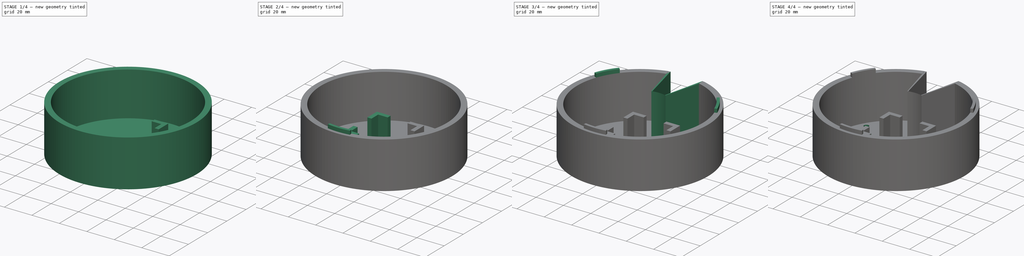
[diagram: build sequence overview — one tinted view per stage of 4, left to right]
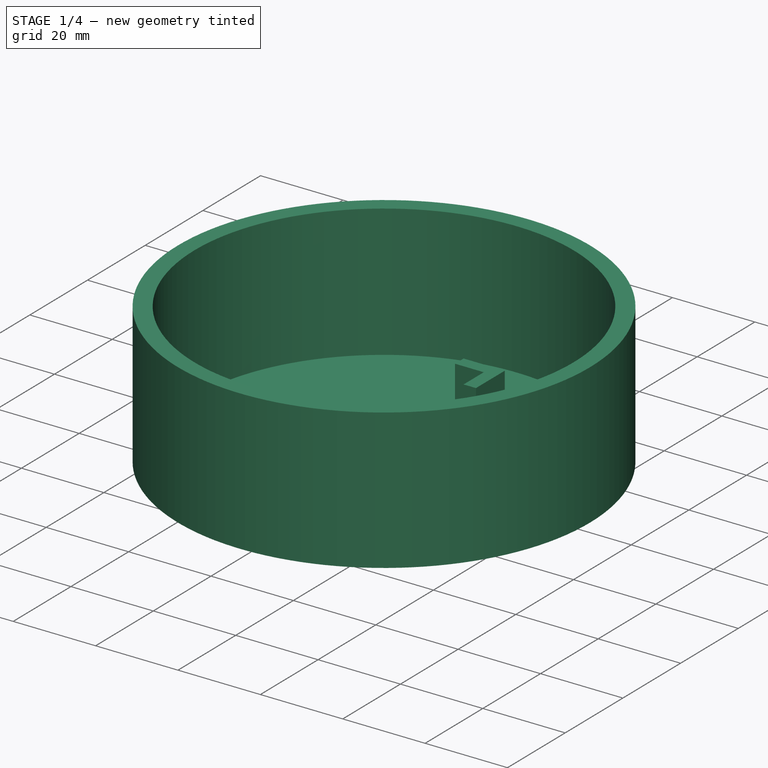
[diagram: stage 1 of 4 — iso view after this stage's code; geometry added in this stage tinted green]
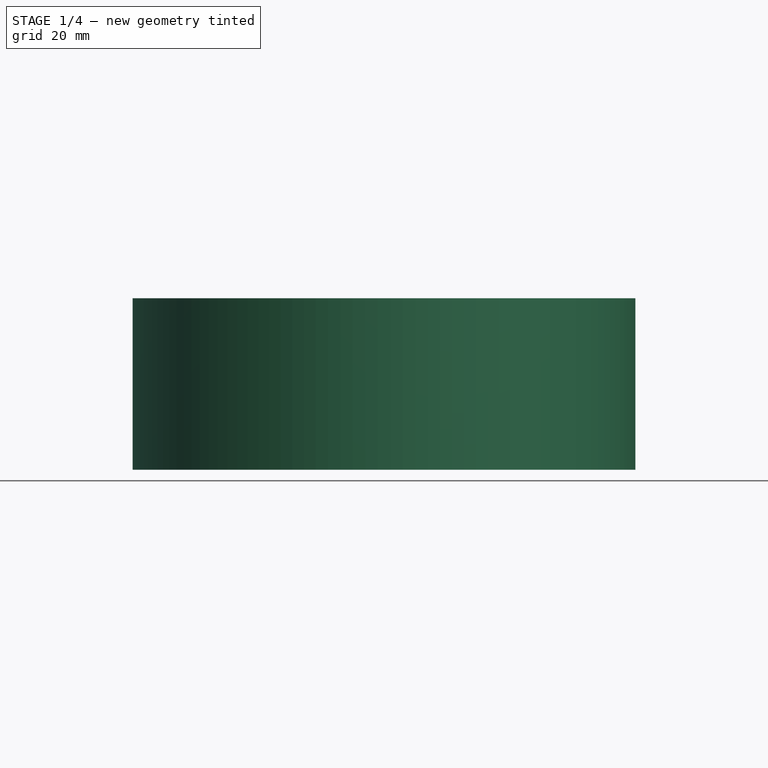
[diagram: stage 1 of 4 — front view after this stage's code; geometry added in this stage tinted green]
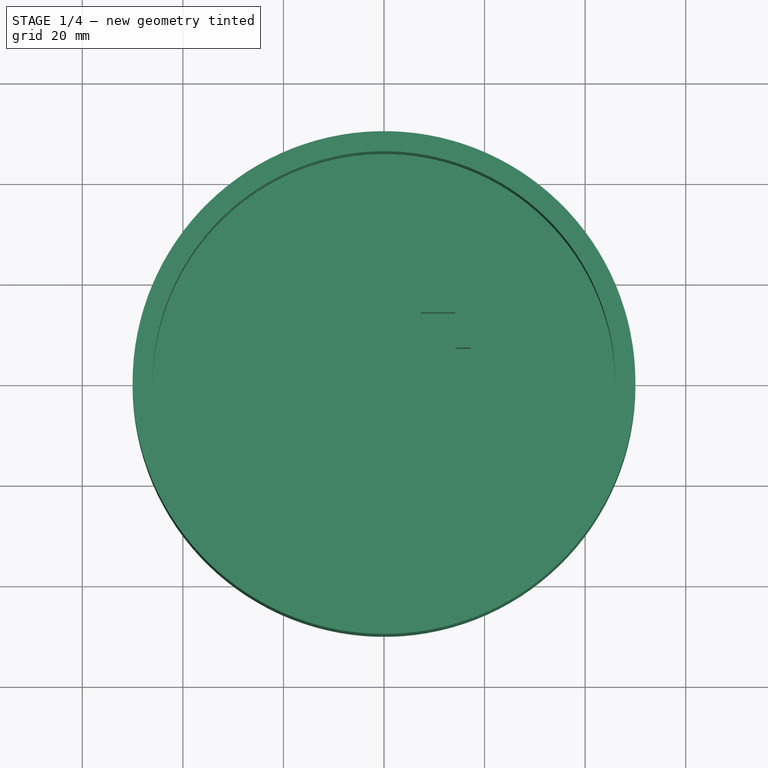
[diagram: stage 1 of 4 — top view after this stage's code; geometry added in this stage tinted green]
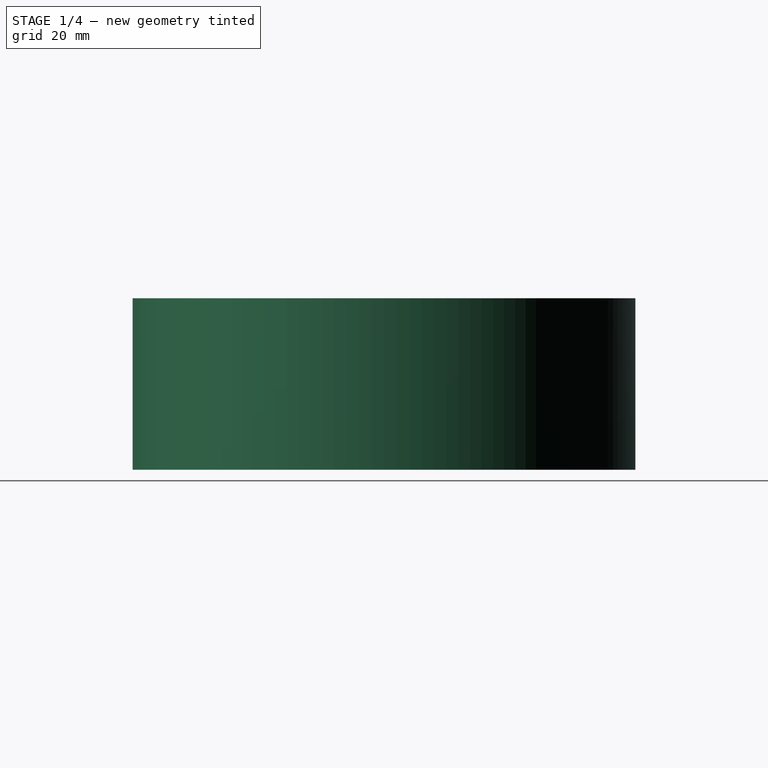
[diagram: stage 1 of 4 — right view after this stage's code; geometry added in this stage tinted green]
FCSTD DOCUMENT  (FreeCAD 0.20R29603 (Git))
Label: Base
License: All rights reserved
LicenseURL: http://en.wikipedia.org/wiki/All_rights_reserved
objects: Sketcher::SketchObject×10, PartDesign::Pocket×5, PartDesign::Pad×4, PartDesign::Plane×3, PartDesign::PolarPattern×2, PartDesign::Groove×1, PartDesign::Fillet×1, PartDesign::Body×1
note: 38 computed .brp shape members not serialized (recipe doc carries the construction recipe); baked Part::Feature solids carry a one-line shape summary decoded from their .brp

FEATURE [Sketcher::SketchObject] Sketch
  FullyConstrained = true
  MapMode = 5
  Support = -> [XY_Plane]
  sketch-geometry (1):
    g0: Circle CenterX=0 CenterY=0 CenterZ=0 NormalX=0 NormalY=0 NormalZ=1 AngleXU=0 Radius=50
  constraints (2):
    c: Coincident(g0,g-1)
    c: Diameter(g0) = 100
FEATURE [PartDesign::Pad] Pad
  Direction = (0,0,1)
  Length = 34.1
  Length2 = 10
  Profile = -> Sketch
  ReferenceAxis = -> Sketch [N_Axis]
  Type = 0
FEATURE [PartDesign::Plane] DatumPlane
  AttachmentOffset = pos=(0,0,34.1) rot=(0,0,1;0rad)
  Length = 120
  MapMode = 2
  Placement = pos=(0,0,34.1) rot=(0,0,1;0rad)
  ResizeMode = 0
  Support = -> [XY_Plane]
  Width = 120
FEATURE [Sketcher::SketchObject] Sketch001
  FullyConstrained = true
  MapMode = 5
  Placement = pos=(0,0,34.1) rot=(0,0,1;0rad)
  Support = -> [DatumPlane]
  sketch-geometry (1):
    g0: Circle CenterX=0 CenterY=0 CenterZ=0 NormalX=0 NormalY=0 NormalZ=1 AngleXU=0 Radius=46
  constraints (2):
    c: Coincident(g0,g-1)
    c: Diameter(g0) = 92
FEATURE [PartDesign::Pocket] Pocket
  BaseFeature = -> Pad
  Direction = (0,0,-1)
  Length = 32.1
  Length2 = 5
  Profile = -> Sketch001
  ReferenceAxis = -> Sketch001 [N_Axis]
  Type = 0
FEATURE [PartDesign::Plane] DatumPlane001
  AttachmentOffset = pos=(0,0,2) rot=(0,0,1;0rad)
  Length = 120
  MapMode = 5
  Placement = pos=(0,0,2) rot=(0,0,1;0rad)
  ResizeMode = 0
  Support = -> [XY_Plane]
  Width = 120
FEATURE [Sketcher::SketchObject] Sketch002
  FullyConstrained = true
  MapMode = 5
  Placement = pos=(0,0,2) rot=(0,0,1;0rad)
  Support = -> [DatumPlane001]
  sketch-geometry (6):
    g0: LineSegment StartX=7.25 StartY=17.25 StartZ=0 EndX=17.25 EndY=17.25 EndZ=0
    g1: LineSegment StartX=17.25 StartY=17.25 StartZ=0 EndX=17.25 EndY=7.25 EndZ=0
    g2: LineSegment StartX=17.25 StartY=7.25 StartZ=0 EndX=14.25 EndY=7.25 EndZ=0
    g3: LineSegment StartX=14.25 StartY=7.25 StartZ=0 EndX=14.25 EndY=14.25 EndZ=0
    g4: LineSegment StartX=14.25 StartY=14.25 StartZ=0 EndX=7.25 EndY=14.25 EndZ=0
    g5: LineSegment StartX=7.25 StartY=14.25 StartZ=0 EndX=7.25 EndY=17.25 EndZ=0
  constraints (18):
    c: Horizontal(g0)
    c: Coincident(g1,g0)
    c: Vertical(g1)
    c: Coincident(g2,g1)
    c: Horizontal(g2)
    c: Coincident(g3,g2)
    c: Vertical(g3)
    c: Coincident(g4,g3)
    c: Horizontal(g4)
    c: Coincident(g5,g4)
    c: Coincident(g5,g0)
    c: DistanceX(g2,g2) = 3
    c: DistanceY(g5,g5) = 3
    c: DistanceY(g3,g3) = 7
    c: DistanceX(g4,g4) = 7
    c: Vertical(g5)
    c: DistanceX(g-1,g3) = 14.25
    c: DistanceY(g-1,g3) = 14.25
FEATURE [PartDesign::Pad] Pad001
  BaseFeature = -> Pocket
  Direction = (0,0,1)
  Length = 16
  Length2 = 10
  Profile = -> Sketch002
  ReferenceAxis = -> Sketch002 [N_Axis]
  Type = 0
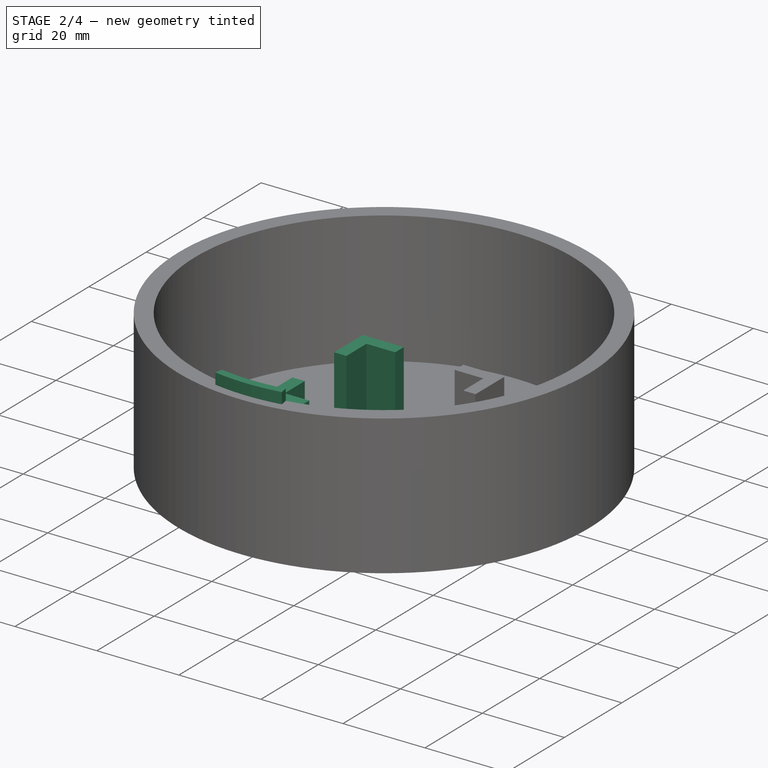
[diagram: stage 2 of 4 — iso view after this stage's code; geometry added in this stage tinted green]
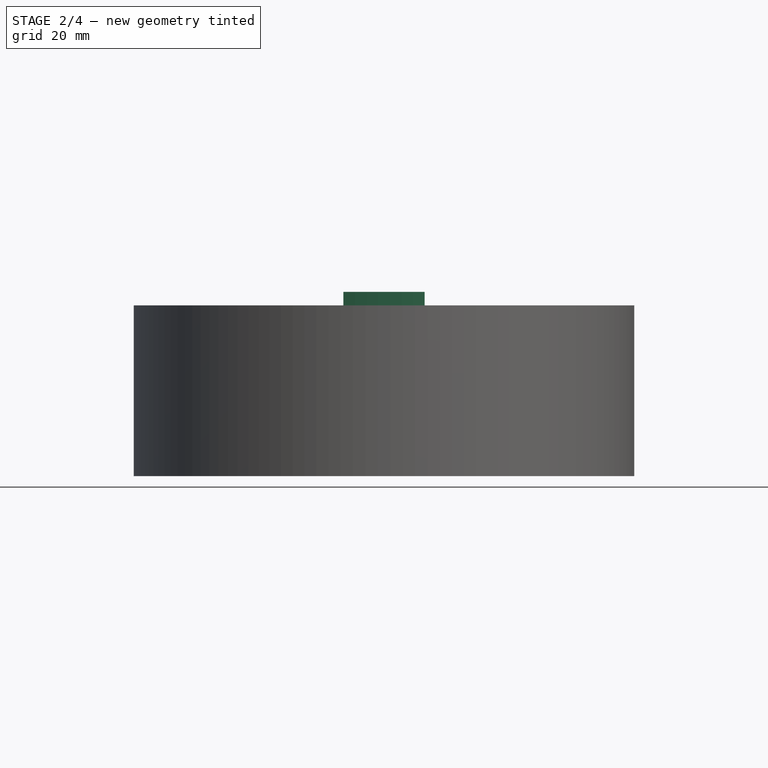
[diagram: stage 2 of 4 — front view after this stage's code; geometry added in this stage tinted green]
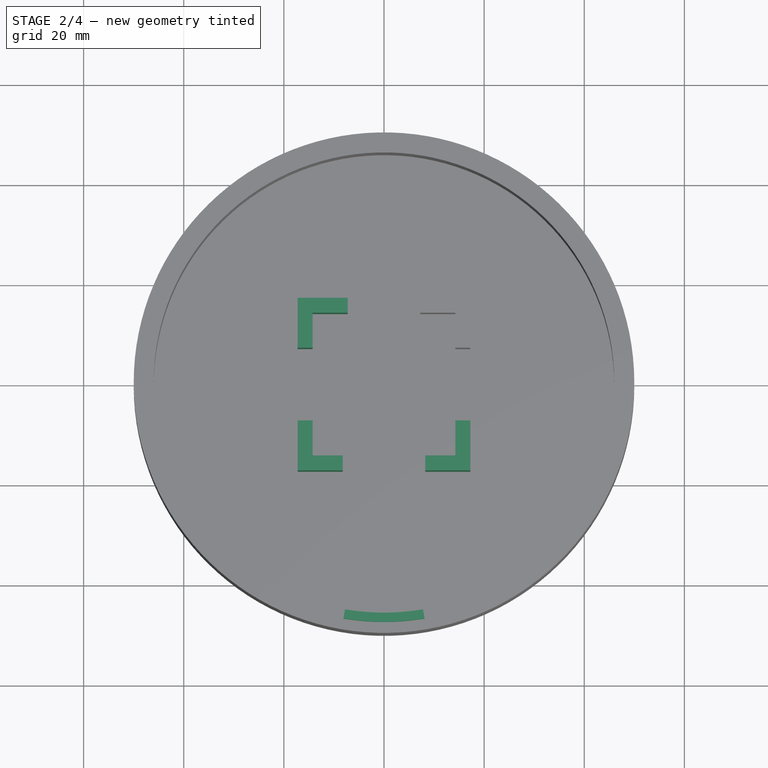
[diagram: stage 2 of 4 — top view after this stage's code; geometry added in this stage tinted green]
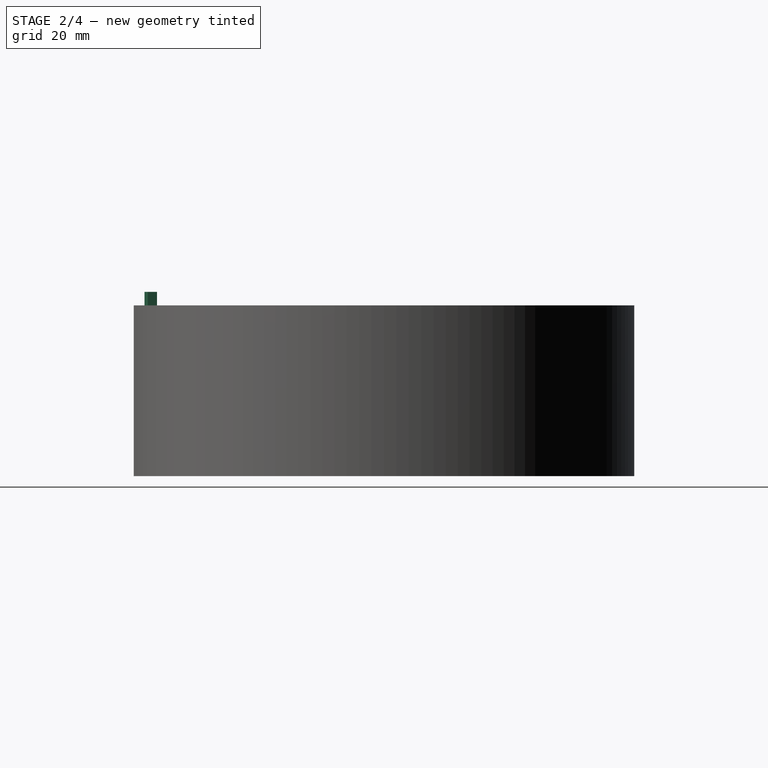
[diagram: stage 2 of 4 — right view after this stage's code; geometry added in this stage tinted green]
FEATURE [PartDesign::PolarPattern] PolarPattern
  Angle = 360
  Axis = -> Sketch002 [N_Axis]
  BaseFeature = -> Pad001
  Occurrences = 4
  Originals = -> [Pad001]
FEATURE [Sketcher::SketchObject] Sketch003
  FullyConstrained = false
  MapMode = 5
  Placement = pos=(0,0,2) rot=(0,0,1;0rad)
  Support = -> [DatumPlane001]
  sketch-geometry (4):
    g0: LineSegment StartX=-8.25 StartY=-12.6472 StartZ=0 EndX=8.25 EndY=-12.6472 EndZ=0
    g1: LineSegment StartX=8.25 StartY=-12.6472 StartZ=0 EndX=8.25 EndY=-19.6069 EndZ=0
    g2: LineSegment StartX=8.25 StartY=-19.6069 StartZ=0 EndX=-8.25 EndY=-19.6069 EndZ=0
    g3: LineSegment StartX=-8.25 StartY=-19.6069 StartZ=0 EndX=-8.25 EndY=-12.6472 EndZ=0
  constraints (10):
    c: Coincident(g0,g1)
    c: Coincident(g1,g2)
    c: Coincident(g2,g3)
    c: Coincident(g3,g0)
    c: Horizontal(g0)
    c: Horizontal(g2)
    c: Vertical(g1)
    c: Vertical(g3)
    c: DistanceX(g0,g0) = 16.5
    c: DistanceX(g-1,g0) = 8.25
FEATURE [PartDesign::Pocket] Pocket001
  BaseFeature = -> PolarPattern
  Direction = (0,0,-1)
  Length = 5
  Length2 = 5
  Profile = -> Sketch003
  ReferenceAxis = -> Sketch003 [N_Axis]
  Reversed = true
  Type = 1
FEATURE [PartDesign::Plane] DatumPlane002
  AttachmentOffset = pos=(0,0,34) rot=(0,0,1;0rad)
  Length = 120
  MapMode = 5
  Placement = pos=(0,0,34) rot=(0,0,1;0rad)
  ResizeMode = 0
  Support = -> [XY_Plane]
  Width = 120
FEATURE [Sketcher::SketchObject] Sketch005
  FullyConstrained = true
  MapMode = 5
  Placement = pos=(0,0,34) rot=(0,0,1;0rad)
  Support = -> [DatumPlane002]
  sketch-geometry (5):
    g0: ArcOfCircle CenterX=0 CenterY=0 CenterZ=0 NormalX=0 NormalY=0 NormalZ=1 AngleXU=0 Radius=46 StartAngle=4.54222 EndAngle=4.88256
    g1: LineSegment StartX=-7.79008 StartY=-45.3356 StartZ=0 EndX=7.79008 EndY=-45.3356 EndZ=0
    g2: ArcOfCircle CenterX=0 CenterY=0 CenterZ=0 NormalX=0 NormalY=0 NormalZ=1 AngleXU=0 Radius=47.85 StartAngle=4.54222 EndAngle=4.88256
    g3: LineSegment StartX=-7.79008 StartY=-45.3356 StartZ=0 EndX=-8.10337 EndY=-47.1589 EndZ=0
    g4: LineSegment StartX=7.79008 StartY=-45.3356 StartZ=0 EndX=8.10337 EndY=-47.1589 EndZ=0
  constraints (14):
    c: Coincident(g0,g-1)
    c: Radius(g0) = 46
    c: Coincident(g1,g0)
    c: Horizontal(g1)
    c: Coincident(g2,g0)
    c: Coincident(g3,g0)
    c: Coincident(g3,g2)
    c: Coincident(g4,g2)
    c: Perpendicular(g2,g3)
    c: Perpendicular(g2,g4)
    c: Distance(g4) = 1.85
    c: Coincident(g0,g1)
    c: Coincident(g0,g4)
    c: Angle(g0) = 0.340339
FEATURE [PartDesign::Pad] Pad002
  BaseFeature = -> Pocket001
  Direction = (0,0,1)
  Length = 2.8
  Length2 = 10
  Profile = -> Sketch005
  ReferenceAxis = -> Sketch005 [N_Axis]
  Type = 0
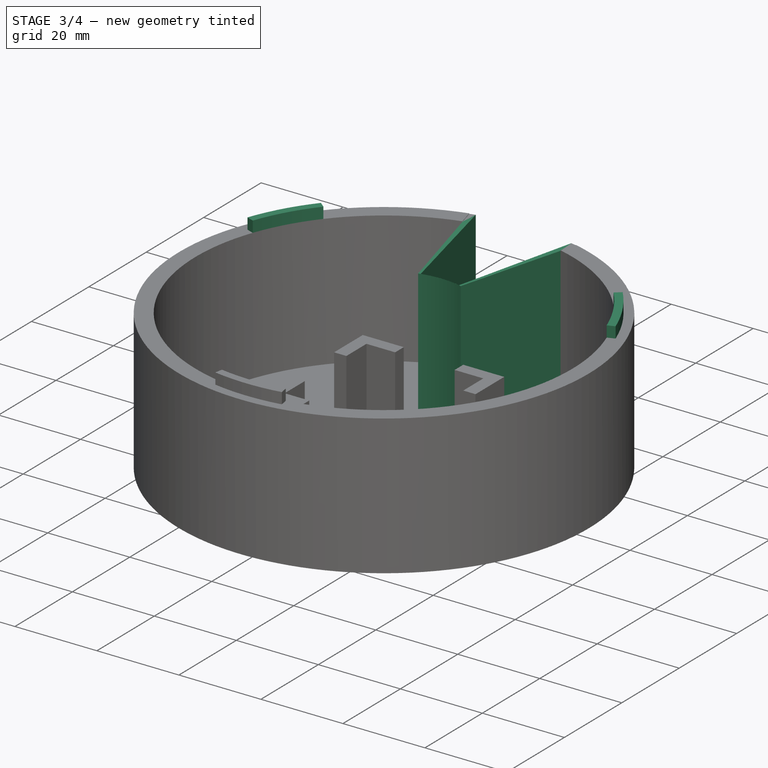
[diagram: stage 3 of 4 — iso view after this stage's code; geometry added in this stage tinted green]
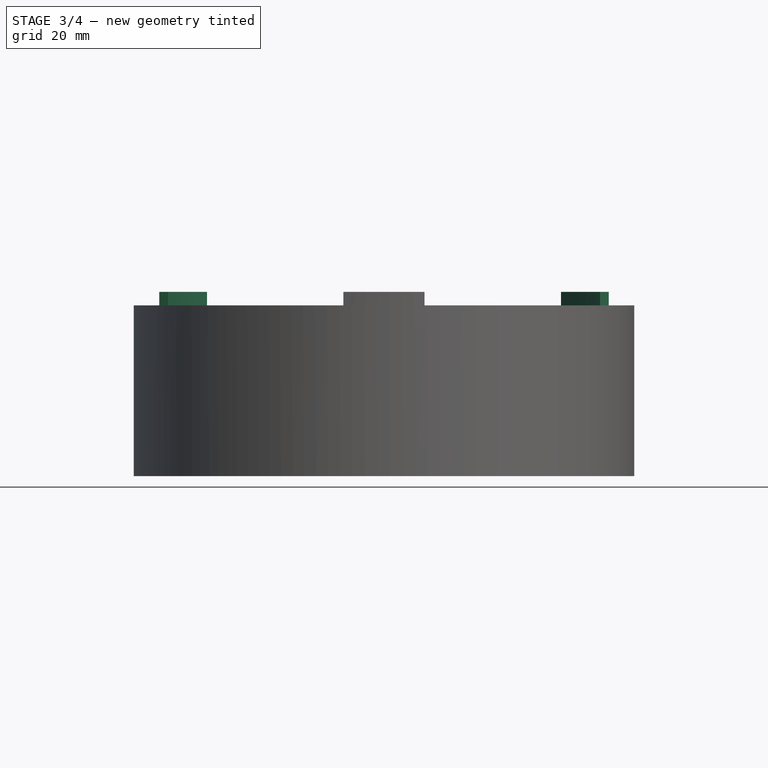
[diagram: stage 3 of 4 — front view after this stage's code; geometry added in this stage tinted green]
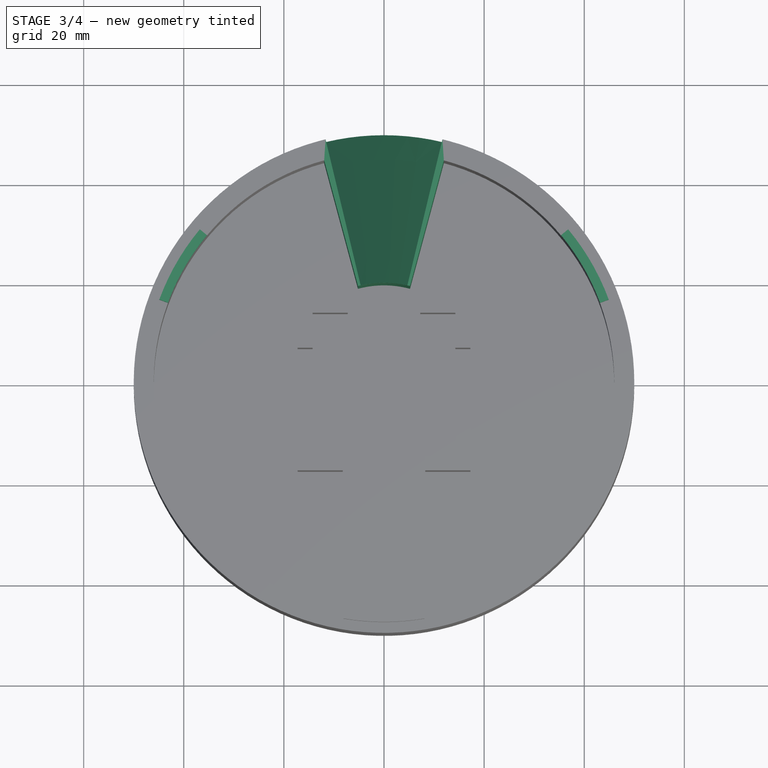
[diagram: stage 3 of 4 — top view after this stage's code; geometry added in this stage tinted green]
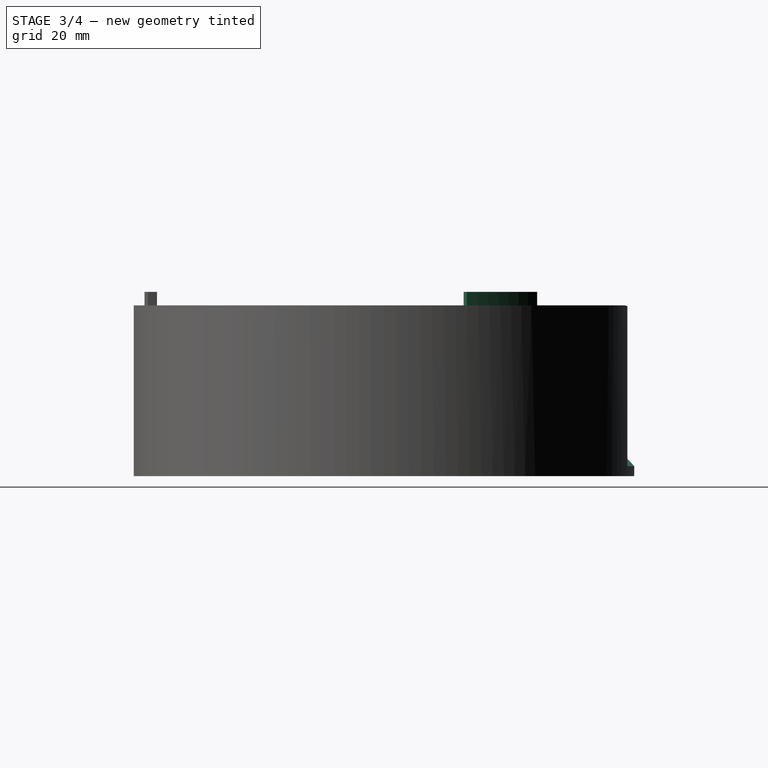
[diagram: stage 3 of 4 — right view after this stage's code; geometry added in this stage tinted green]
FEATURE [PartDesign::PolarPattern] PolarPattern001
  Angle = 360
  Axis = -> Sketch005 [N_Axis]
  BaseFeature = -> Pad002
  Occurrences = 3
  Originals = -> [Pad002]
FEATURE [Sketcher::SketchObject] Sketch006
  FullyConstrained = false
  MapMode = 5
  Placement = pos=(0,0,2) rot=(0,0,1;0rad)
  Support = -> [DatumPlane001]
  sketch-geometry (7):
    g0: ArcOfCircle CenterX=0 CenterY=0 CenterZ=0 NormalX=0 NormalY=0 NormalZ=1 AngleXU=0 Radius=50 StartAngle=1.30777 EndAngle=1.83382
    g1: LineSegment StartX=-13 StartY=48.2804 StartZ=0 EndX=13 EndY=48.2804 EndZ=0
    g2: LineSegment StartX=-13 StartY=48.2804 StartZ=0 EndX=0 EndY=0 EndZ=0
    g3: LineSegment StartX=0 StartY=0 StartZ=0 EndX=13 EndY=48.2804 EndZ=0
    g4: LineSegment StartX=-13 StartY=48.2804 StartZ=0 EndX=-5.83572 EndY=21.6732 EndZ=0
    g5: LineSegment StartX=5.83572 StartY=21.6732 StartZ=0 EndX=13 EndY=48.2804 EndZ=0
    g6: ArcOfCircle CenterX=0 CenterY=0 CenterZ=0 NormalX=0 NormalY=0 NormalZ=1 AngleXU=0 Radius=22.4451 StartAngle=1.30777 EndAngle=1.83382
  constraints (17):
    c: Coincident(g0,g-1)
    c: Coincident(g1,g0)
    c: Coincident(g1,g0)
    c: Horizontal(g1)
    c: Radius(g0) = 50
    c: DistanceX(g1,g1) = 26
    c: Coincident(g2,g0)
    c: Coincident(g2,g0)
    c: Coincident(g3,g0)
    c: Coincident(g3,g0)
    c: Coincident(g4,g0)
    c: PointOnObject(g4,g2)
    c: PointOnObject(g5,g3)
    c: Coincident(g5,g0)
    c: Coincident(g6,g0)
    c: Coincident(g6,g4)
    c: Coincident(g6,g5)
FEATURE [PartDesign::Pocket] Pocket002
  BaseFeature = -> PolarPattern001
  Direction = (0,0,-1)
  Length = 5
  Length2 = 5
  Profile = -> Sketch006
  ReferenceAxis = -> Sketch006 [N_Axis]
  Reversed = true
  Type = 1
FEATURE [Sketcher::SketchObject] Sketch007
  FullyConstrained = true
  MapMode = 5
  Placement = pos=(0,0,2) rot=(0,0,1;0rad)
  Support = -> [DatumPlane001]
  sketch-geometry (10):
    g0: ArcOfCircle CenterX=0 CenterY=0 CenterZ=0 NormalX=0 NormalY=0 NormalZ=1 AngleXU=0 Radius=50 StartAngle=1.30777 EndAngle=1.83382
    g1: LineSegment StartX=-13 StartY=48.2804 StartZ=0 EndX=13 EndY=48.2804 EndZ=0
    g2: GeomPoint X=0 Y=50 Z=0
    g3: LineSegment StartX=-13 StartY=48.2804 StartZ=0 EndX=0 EndY=0 EndZ=0
    g4: LineSegment StartX=13 StartY=48.2804 StartZ=0 EndX=-1.8e-15 EndY=0 EndZ=0
    g5: Circle CenterX=0 CenterY=0 CenterZ=0 NormalX=0 NormalY=0 NormalZ=1 AngleXU=0 Radius=25
    g6: LineSegment StartX=-13 StartY=48.2804 StartZ=0 EndX=-5.2 EndY=19.3122 EndZ=0
    g7: LineSegment StartX=13 StartY=48.2804 StartZ=0 EndX=5.2 EndY=19.3122 EndZ=0
    g8: ArcOfCircle CenterX=0 CenterY=0 CenterZ=0 NormalX=0 NormalY=0 NormalZ=1 AngleXU=0 Radius=20 StartAngle=1.30777 EndAngle=1.83382
    g9: GeomPoint X=0 Y=20 Z=0
  constraints (24):
    c: Coincident(g0,g-1)
    c: Coincident(g1,g0)
    c: Coincident(g1,g0)
    c: Horizontal(g1)
    c: DistanceX(g1,g1) = 26
    c: Radius(g0) = 50
    c: PointOnObject(g2,g0)
    c: PointOnObject(g2,g-2)
    c: Coincident(g3,g0)
    c: Coincident(g3,g0)
    c: Coincident(g4,g0)
    c: Coincident(g4,g0)
    c: Coincident(g5,g0)
    c: Diameter(g5) = 50
    c: Coincident(g6,g0)
    c: PointOnObject(g6,g3)
    c: Coincident(g7,g0)
    c: PointOnObject(g7,g4)
    c: Coincident(g8,g0)
    c: Coincident(g8,g6)
    c: Coincident(g8,g7)
    c: PointOnObject(g9,g8)
    c: PointOnObject(g9,g-2)
    c: DistanceY(g0,g9) = 20
FEATURE [PartDesign::Pad] Pad003
  BaseFeature = -> Pocket002
  Direction = (0,0,1)
  Length = 32
  Length2 = 10
  Profile = -> Sketch007
  ReferenceAxis = -> Sketch007 [N_Axis]
  Type = 0
FEATURE [Sketcher::SketchObject] Sketch008
  FullyConstrained = false
  MapMode = 5
  Placement = pos=(0,0,0) rot=(0.57735,0.57735,0.57735;2.0944rad)
  Support = -> [YZ_Plane]
  sketch-geometry (4):
    g0: LineSegment StartX=20 StartY=34.0087 StartZ=0 EndX=50 EndY=2 EndZ=0
    g1: LineSegment StartX=50 StartY=2 StartZ=0 EndX=50 EndY=52 EndZ=0
    g2: LineSegment StartX=50 StartY=52 StartZ=0 EndX=20 EndY=52 EndZ=0
    g3: LineSegment StartX=20 StartY=52 StartZ=0 EndX=20 EndY=34.0087 EndZ=0
  constraints (11):
    c: Coincident(g1,g0)
    c: Vertical(g1)
    c: Coincident(g2,g1)
    c: Horizontal(g2)
    c: Coincident(g3,g2)
    c: Coincident(g3,g0)
    c: Vertical(g3)
    c: DistanceY(g-1,g0) = 2
    c: DistanceX(g-1,g0) = 50
    c: DistanceX(g-1,g0) = 20
    c: DistanceY(g1,g1) = 50
FEATURE [PartDesign::Groove] Groove
  Angle = 27
  Axis = (-2e-16,3e-16,1)
  Base = (0,0,0)
  BaseFeature = -> Pad003
  Midplane = true
  Profile = -> Sketch008
  ReferenceAxis = -> Sketch008 [V_Axis]
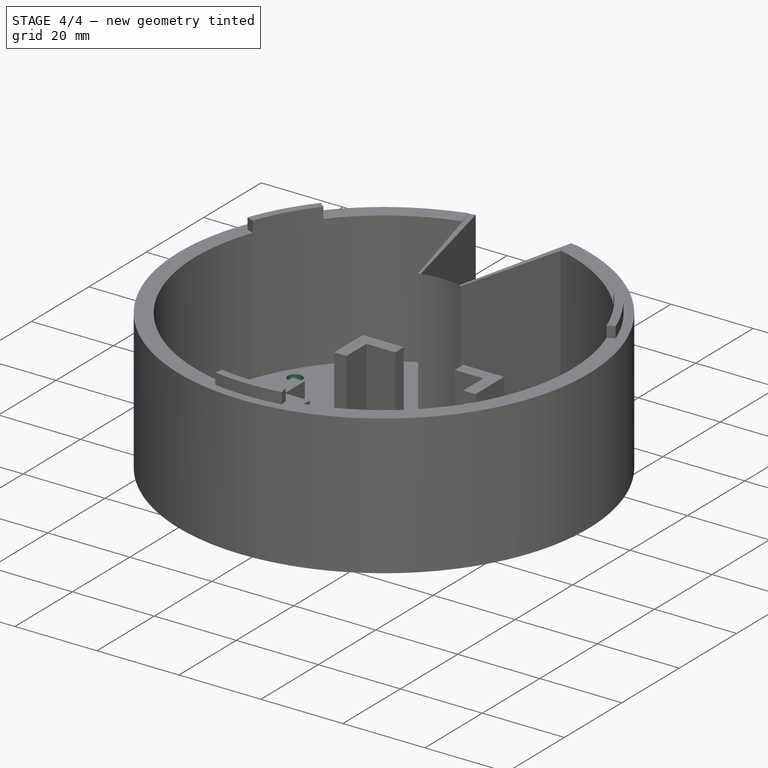
[diagram: stage 4 of 4 — iso view after this stage's code; geometry added in this stage tinted green]
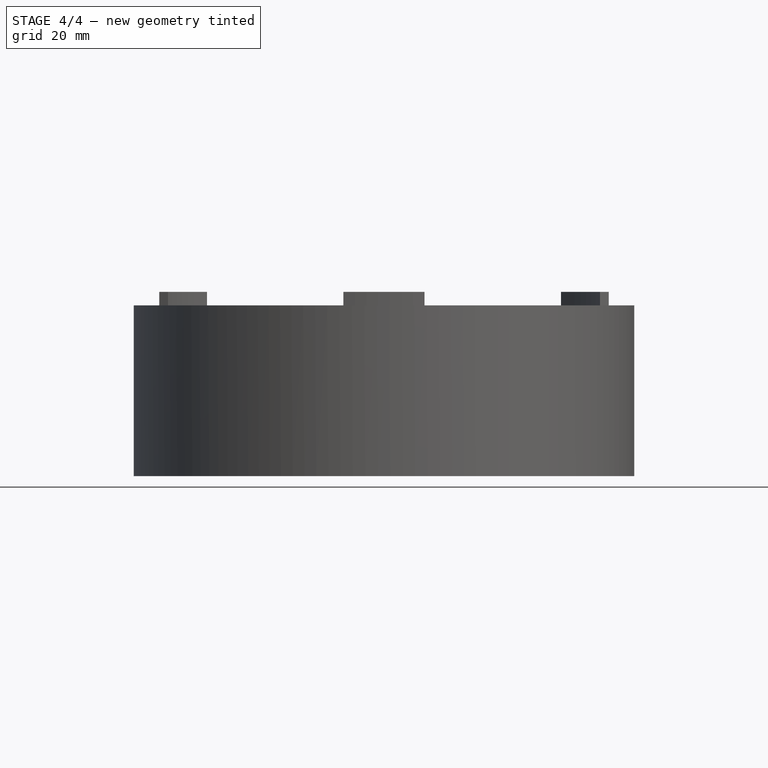
[diagram: stage 4 of 4 — front view after this stage's code; geometry added in this stage tinted green]
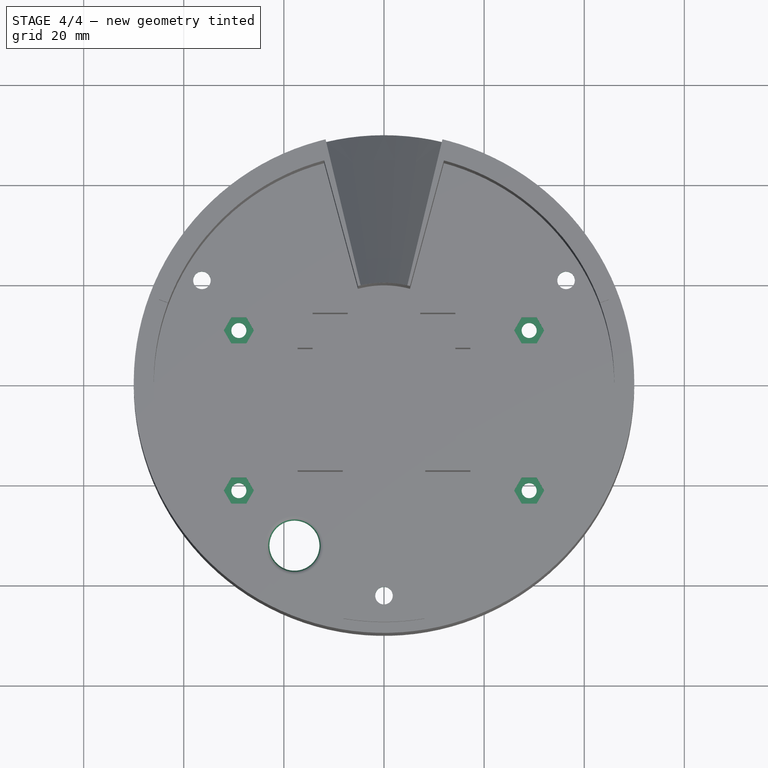
[diagram: stage 4 of 4 — top view after this stage's code; geometry added in this stage tinted green]
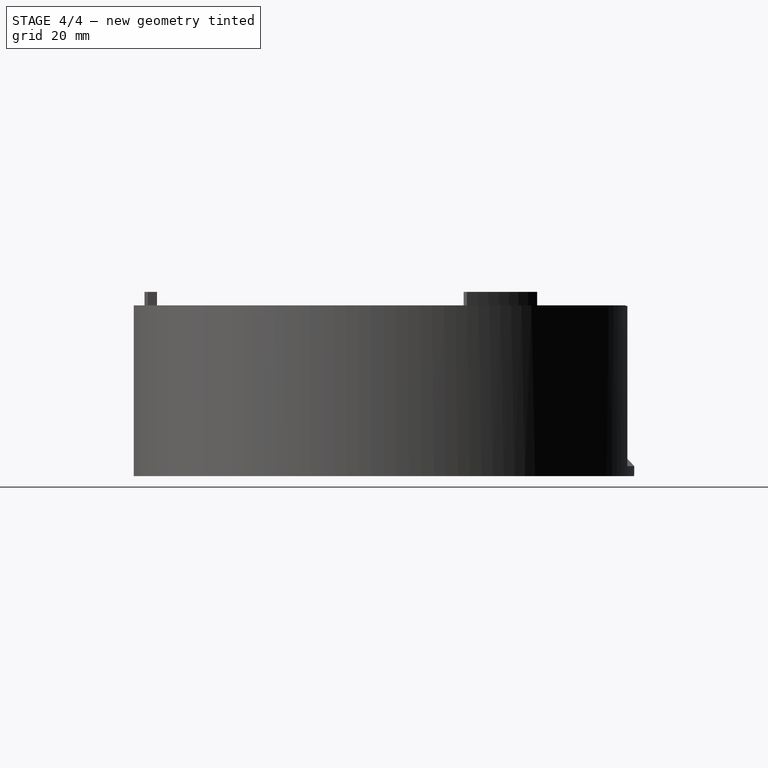
[diagram: stage 4 of 4 — right view after this stage's code; geometry added in this stage tinted green]
FEATURE [Sketcher::SketchObject] Sketch010
  FullyConstrained = true
  MapMode = 5
  Placement = pos=(0,0,2) rot=(0,0,1;0rad)
  Support = -> [DatumPlane001]
  sketch-geometry (33):
    g0: LineSegment StartX=-32.5 StartY=-24.5 StartZ=0 EndX=-32.5 EndY=14.5 EndZ=0
    g1: LineSegment StartX=-32.5 StartY=14.5 StartZ=0 EndX=32.5 EndY=14.5 EndZ=0
    g2: LineSegment StartX=32.5 StartY=14.5 StartZ=0 EndX=32.5 EndY=-24.5 EndZ=0
    g3: LineSegment StartX=32.5 StartY=-24.5 StartZ=0 EndX=-32.5 EndY=-24.5 EndZ=0
    g4: GeomPoint X=0 Y=-5 Z=0
    g5: LineSegment StartX=-25.9978 StartY=11 StartZ=0 EndX=-27.4989 EndY=13.6 EndZ=0
    g6: LineSegment StartX=-27.4989 StartY=13.6 StartZ=0 EndX=-30.5011 EndY=13.6 EndZ=0
    g7: LineSegment StartX=-30.5011 StartY=13.6 StartZ=0 EndX=-32.0022 EndY=11 EndZ=0
    g8: LineSegment StartX=-32.0022 StartY=11 StartZ=0 EndX=-30.5011 EndY=8.4 EndZ=0
    g9: LineSegment StartX=-30.5011 StartY=8.4 StartZ=0 EndX=-27.4989 EndY=8.4 EndZ=0
    g10: LineSegment StartX=-27.4989 StartY=8.4 StartZ=0 EndX=-25.9978 EndY=11 EndZ=0
    g11: Circle CenterX=-29 CenterY=11 CenterZ=0 NormalX=0 NormalY=0 NormalZ=1 AngleXU=0 Radius=3.00222
    g12: LineSegment StartX=30.5011 StartY=8.4 StartZ=0 EndX=32.0022 EndY=11 EndZ=0
    g13: LineSegment StartX=32.0022 StartY=11 StartZ=0 EndX=30.5011 EndY=13.6 EndZ=0
    g14: LineSegment StartX=30.5011 StartY=13.6 StartZ=0 EndX=27.4989 EndY=13.6 EndZ=0
    g15: LineSegment StartX=27.4989 StartY=13.6 StartZ=0 EndX=25.9978 EndY=11 EndZ=0
    g16: LineSegment StartX=25.9978 StartY=11 StartZ=0 EndX=27.4989 EndY=8.4 EndZ=0
    g17: LineSegment StartX=27.4989 StartY=8.4 StartZ=0 EndX=30.5011 EndY=8.4 EndZ=0
    g18: Circle CenterX=29 CenterY=11 CenterZ=0 NormalX=0 NormalY=0 NormalZ=1 AngleXU=0 Radius=3.00222
    g19: LineSegment StartX=-27.4989 StartY=-23.6 StartZ=0 EndX=-25.9978 EndY=-21 EndZ=0
    g20: LineSegment StartX=-25.9978 StartY=-21 StartZ=0 EndX=-27.4989 EndY=-18.4 EndZ=0
    g21: LineSegment StartX=-27.4989 StartY=-18.4 StartZ=0 EndX=-30.5011 EndY=-18.4 EndZ=0
    g22: LineSegment StartX=-30.5011 StartY=-18.4 StartZ=0 EndX=-32.0022 EndY=-21 EndZ=0
    g23: LineSegment StartX=-32.0022 StartY=-21 StartZ=0 EndX=-30.5011 EndY=-23.6 EndZ=0
    g24: LineSegment StartX=-30.5011 StartY=-23.6 StartZ=0 EndX=-27.4989 EndY=-23.6 EndZ=0
    g25: Circle CenterX=-29 CenterY=-21 CenterZ=0 NormalX=0 NormalY=0 NormalZ=1 AngleXU=0 Radius=3.00222
    g26: LineSegment StartX=30.5011 StartY=-23.6 StartZ=0 EndX=32.0022 EndY=-21 EndZ=0
    g27: LineSegment StartX=32.0022 StartY=-21 StartZ=0 EndX=30.5011 EndY=-18.4 EndZ=0
    g28: LineSegment StartX=30.5011 StartY=-18.4 StartZ=0 EndX=27.4989 EndY=-18.4 EndZ=0
    g29: LineSegment StartX=27.4989 StartY=-18.4 StartZ=0 EndX=25.9978 EndY=-21 EndZ=0
    g30: LineSegment StartX=25.9978 StartY=-21 StartZ=0 EndX=27.4989 EndY=-23.6 EndZ=0
    g31: LineSegment StartX=27.4989 StartY=-23.6 StartZ=0 EndX=30.5011 EndY=-23.6 EndZ=0
    g32: Circle CenterX=29 CenterY=-21 CenterZ=0 NormalX=0 NormalY=0 NormalZ=1 AngleXU=0 Radius=3.00222
  constraints (81):
    c: Coincident(g0,g1)
    c: Coincident(g1,g2)
    c: Coincident(g2,g3)
    c: Coincident(g3,g0)
    c: Horizontal(g1)
    c: Horizontal(g3)
    c: Vertical(g0)
    c: Vertical(g2)
    c: Symmetric(g1,g0,g4)
    c: DistanceY(g2,g2) = 39
    c: DistanceX(g1,g1) = 65
    c: Coincident(g5,g6)
    c: Coincident(g6,g7)
    c: Coincident(g7,g8)
    c: Coincident(g8,g9)
    c: Coincident(g9,g10)
    c: Coincident(g10,g5)
    c: Equal(g5, g6-g10) x5
    c: PointOnObject(g5,g11)
    c: PointOnObject(g6,g11)
    c: PointOnObject(g7,g11)
    c: PointOnObject(g8,g11)
    c: PointOnObject(g9,g11)
    c: PointOnObject(g10,g11)
    c: DistanceY(g9,g5) = 5.2
    c: Horizontal(g6)
    c: DistanceX(g11,g4) = 29
    c: DistanceY(g4,g11) = 16
    c: PointOnObject(g4,g-2)
    c: DistanceY(g4,g-1) = 5
    c: Coincident(g12,g13)
    c: Coincident(g13,g14)
    c: Coincident(g14,g15)
    c: Coincident(g15,g16)
    c: Coincident(g16,g17)
    c: Coincident(g17,g12)
    c: Equal(g12, g13-g17) x5
    c: PointOnObject(g12,g18)
    c: PointOnObject(g13,g18)
    c: PointOnObject(g14,g18)
    c: PointOnObject(g15,g18)
    c: PointOnObject(g16,g18)
    c: PointOnObject(g17,g18)
    c: Horizontal(g14)
    c: DistanceY(g12,g13) = 5.2
    c: DistanceX(g-1,g18) = 29
    c: DistanceY(g4,g18) = 16
    c: Coincident(g19,g20)
    c: Coincident(g20,g21)
    c: Coincident(g21,g22)
    c: Coincident(g22,g23)
    c: Coincident(g23,g24)
    c: Coincident(g24,g19)
    c: Equal(g19, g20-g24) x5
    c: PointOnObject(g19,g25)
    c: PointOnObject(g20,g25)
    c: PointOnObject(g21,g25)
    c: PointOnObject(g22,g25)
    c: PointOnObject(g23,g25)
    c: PointOnObject(g24,g25)
    c: Horizontal(g21)
    c: DistanceY(g19,g20) = 5.2
    c: DistanceX(g25,g4) = 29
    c: DistanceY(g25,g4) = 16
    c: Coincident(g26,g27)
    c: Coincident(g27,g28)
    c: Coincident(g28,g29)
    c: Coincident(g29,g30)
    c: Coincident(g30,g31)
    c: Coincident(g31,g26)
    c: Equal(g26, g27-g31) x5
    c: PointOnObject(g26,g32)
    c: PointOnObject(g27,g32)
    c: PointOnObject(g28,g32)
    c: PointOnObject(g29,g32)
    c: PointOnObject(g30,g32)
    c: PointOnObject(g31,g32)
    c: Horizontal(g28)
    c: DistanceY(g26,g27) = 5.2
    c: DistanceX(g4,g32) = 29
    c: DistanceY(g32,g4) = 16
FEATURE [PartDesign::Pocket] Pocket003
  BaseFeature = -> Groove
  Direction = (0,0,-1)
  Length = 1
  Length2 = 5
  Profile = -> Sketch010
  ReferenceAxis = -> Sketch010 [N_Axis]
  Type = 0
FEATURE [Sketcher::SketchObject] Sketch011
  FullyConstrained = false
  MapMode = 5
  Placement = pos=(0,0,2) rot=(0,0,1;0rad)
  Support = -> [DatumPlane001]
  sketch-geometry (12):
    g0: Circle CenterX=-29 CenterY=11 CenterZ=0 NormalX=0 NormalY=0 NormalZ=1 AngleXU=0 Radius=1.5
    g1: Circle CenterX=29 CenterY=11 CenterZ=0 NormalX=0 NormalY=0 NormalZ=1 AngleXU=0 Radius=1.5
    g2: Circle CenterX=-29 CenterY=-21 CenterZ=0 NormalX=0 NormalY=0 NormalZ=1 AngleXU=0 Radius=1.5
    g3: Circle CenterX=29 CenterY=-21 CenterZ=0 NormalX=0 NormalY=0 NormalZ=1 AngleXU=0 Radius=1.5
    g4: Circle CenterX=-17.8921 CenterY=-31.9948 CenterZ=0 NormalX=0 NormalY=0 NormalZ=1 AngleXU=0 Radius=5
    g5: Circle CenterX=0 CenterY=-42 CenterZ=0 NormalX=0 NormalY=0 NormalZ=1 AngleXU=0 Radius=1.75
    g6: Circle CenterX=0 CenterY=0 CenterZ=0 NormalX=0 NormalY=0 NormalZ=1 AngleXU=0 Radius=42
    g7: Circle CenterX=-36.3731 CenterY=21 CenterZ=0 NormalX=0 NormalY=0 NormalZ=1 AngleXU=0 Radius=1.75
    g8: Circle CenterX=36.3731 CenterY=21 CenterZ=0 NormalX=0 NormalY=0 NormalZ=1 AngleXU=0 Radius=1.75
    g9: LineSegment StartX=-36.3731 StartY=21 StartZ=0 EndX=0 EndY=0 EndZ=0
    g10: LineSegment StartX=36.3731 StartY=21 StartZ=0 EndX=0 EndY=0 EndZ=0
    g11: GeomPoint X=0 Y=-5 Z=0
  constraints (30):
    c: Diameter(g0) = 3
    c: DistanceX(g0,g-1) = 29
    c: Diameter(g1) = 3
    c: Diameter(g2) = 3
    c: Diameter(g3) = 3
    c: Diameter(g4) = 10
    c: PointOnObject(g5,g-2)
    c: Diameter(g5) = 3.5
    c: Coincident(g6,g-1)
    c: PointOnObject(g5,g6)
    c: Diameter(g6) = 84
    c: PointOnObject(g7,g6)
    c: PointOnObject(g8,g6)
    c: Equal(g8,g7)
    c: Diameter(g8) = 3.5
    c: Coincident(g9,g7)
    c: Coincident(g9,g6)
    c: Coincident(g10,g8)
    c: Coincident(g10,g6)
    c: Angle(g-1,g10) = 0.523599
    c: Angle(g-1,g9) = 2.61799
    c: PointOnObject(g11,g-2)
    c: DistanceY(g11,g6) = 5
    c: DistanceY(g11,g0) = 16
    c: DistanceY(g2,g11) = 16
    c: DistanceX(g2,g11) = 29
    c: DistanceX(g11,g3) = 29
    c: DistanceX(g11,g1) = 29
    c: DistanceY(g11,g1) = 16
    c: DistanceY(g3,g11) = 16
FEATURE [PartDesign::Pocket] Pocket004
  BaseFeature = -> Pocket003
  Direction = (0,0,-1)
  Length = 5
  Length2 = 5
  Profile = -> Sketch011
  ReferenceAxis = -> Sketch011 [N_Axis]
  Type = 1
FEATURE [PartDesign::Fillet] Fillet
  Base = -> Pocket004 [Edge47,Edge12]
  BaseFeature = -> Pocket004
  Radius = 0.9
  SupportTransform = false
  UseAllEdges = false
FEATURE [PartDesign::Body] Body
  Group = -> [Sketch,Pad,DatumPlane,Sketch001,Pocket,DatumPlane001,Sketch002,Pad001,PolarPattern,Sketch003,Pocket001,DatumPlane002,Sketch005,Pad002,PolarPattern001,Sketch006,Pocket002,Sketch007,Pad003,Sketch008,Groove,Sketch010,Pocket003,Sketch011,Pocket004,Fillet]
  Origin = -> Origin
  Tip = -> Fillet
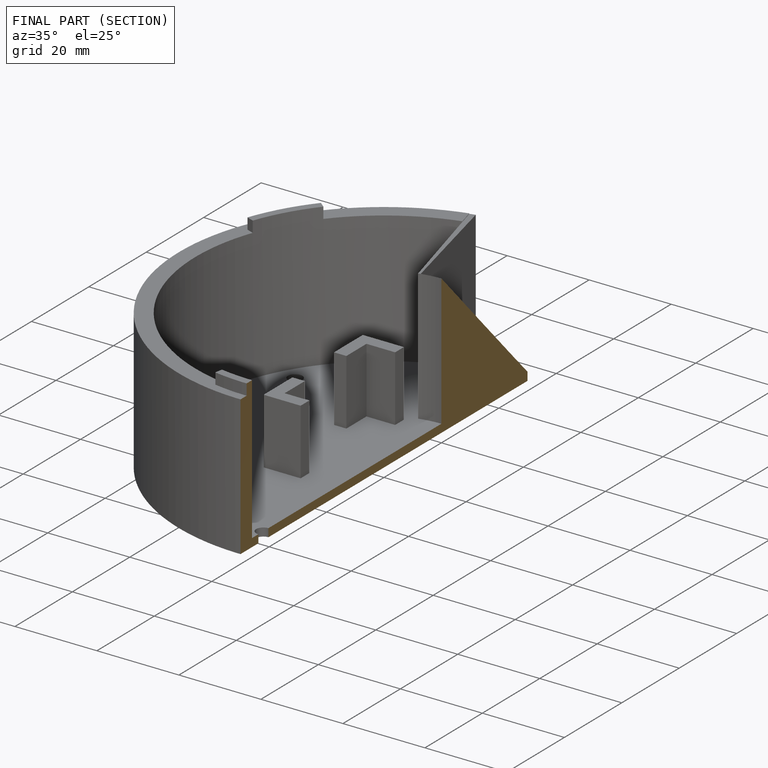
[diagram: finished part — half-section view (interior)]
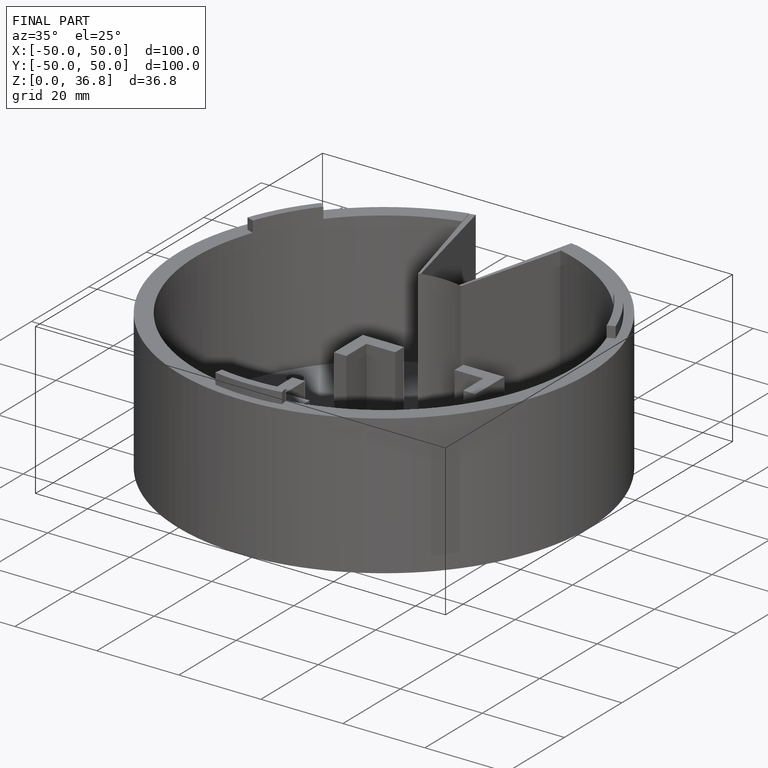
[diagram: finished part — iso view with bounding-box wireframe]
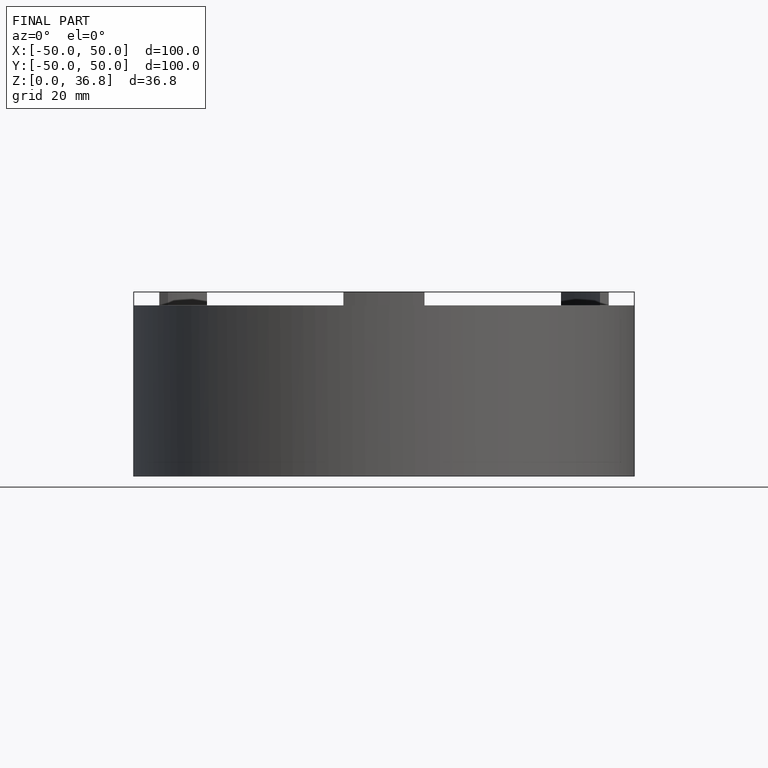
[diagram: finished part — front view with bounding-box wireframe]
